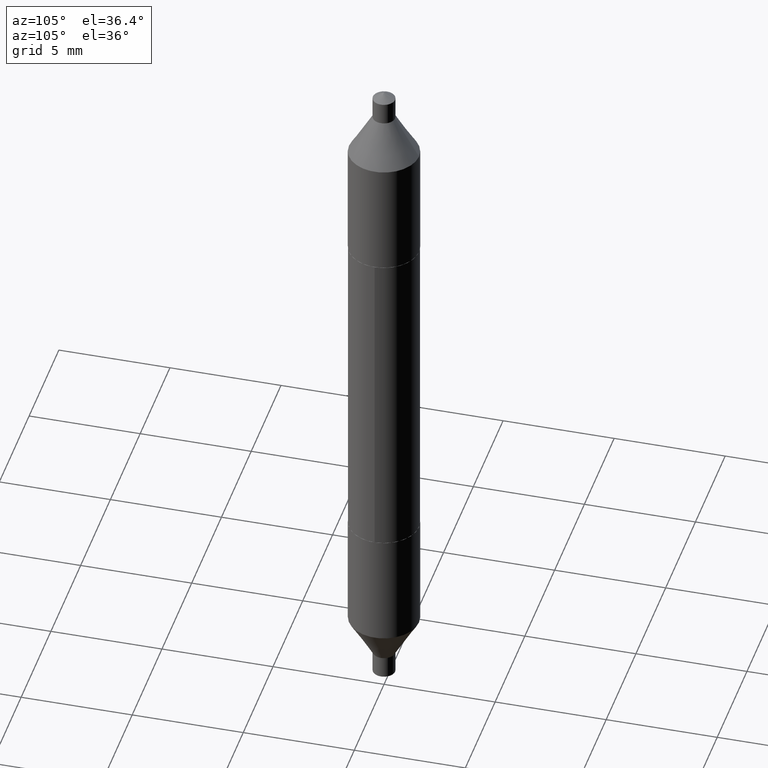
[diagram: clean part render]
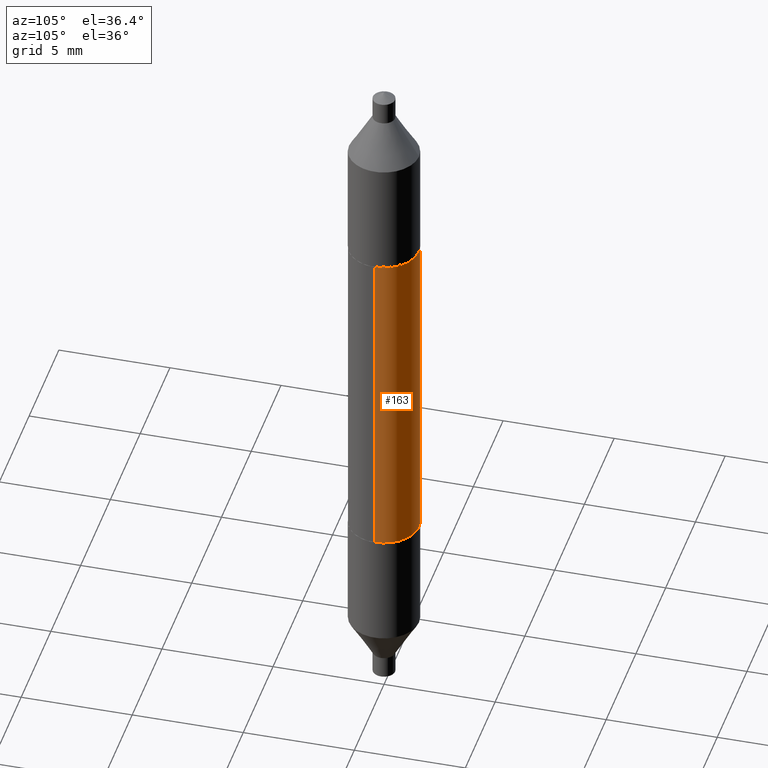
[diagram: same view with one face highlighted and labeled with its STEP entity id]
A machine part, auxiliary view. The second image highlights one B-rep face of the part: STEP entity #163.
In plain terms, the highlighted cylindrical surface (edge-blend (fillet) strip) has radius 1.5748 mm, axis along (-0, 0, 1).
Its self-contained STEP definition (entity closure, byte-faithful):
#25 = CIRCLE ( 'NONE', #530, 0.06200000000000004119 ) ;
#26 = CARTESIAN_POINT ( 'NONE',  ( -0.06200000000000004813, 4.405364961712623586E-16, 0.2924999999999998712 ) ) ;
#38 = CARTESIAN_POINT ( 'NONE',  ( 0.000000000000000000, 0.000000000000000000, 0.000000000000000000 ) ) ;
#40 = EDGE_CURVE ( 'NONE', #492, #41, #54, .T. ) ;
#41 = VERTEX_POINT ( 'NONE', #493 ) ;
#54 = CIRCLE ( 'NONE', #436, 0.06200000000000004119 ) ;
#105 = LINE ( 'NONE', #208, #640 ) ;
#113 = VERTEX_POINT ( 'NONE', #302 ) ;
#140 = LINE ( 'NONE', #677, #662 ) ;
#159 = ORIENTED_EDGE ( 'NONE', *, *, #175, .F. ) ;
#163 = ADVANCED_FACE ( 'NONE', ( #297 ), #510, .T. ) ;
#175 = EDGE_CURVE ( 'NONE', #492, #113, #140, .T. ) ;
#208 = CARTESIAN_POINT ( 'NONE',  ( -0.06200000000000003425, 4.405364961712623586E-16, -3.049739755958042975E-30 ) ) ;
#213 = EDGE_LOOP ( 'NONE', ( #352, #412, #455, #159 ) ) ;
#237 = DIRECTION ( 'NONE',  ( -2.445468806185136597E-29, 3.491481338843145583E-15, 1.000000000000000000 ) ) ;
#241 = AXIS2_PLACEMENT_3D ( 'NONE', #38, #245, #453 ) ;
#245 = DIRECTION ( 'NONE',  ( -2.445468806185136597E-29, 3.491481338843145583E-15, 1.000000000000000000 ) ) ;
#279 = DIRECTION ( 'NONE',  ( 1.000000000000000000, -6.982962677686265922E-15, 0.000000000000000000 ) ) ;
#285 = DIRECTION ( 'NONE',  ( -2.445468806185136597E-29, 3.491481338843145583E-15, 1.000000000000000000 ) ) ;
#291 = EDGE_CURVE ( 'NONE', #41, #431, #105, .T. ) ;
#297 = FACE_OUTER_BOUND ( 'NONE', #213, .T. ) ;
#302 = CARTESIAN_POINT ( 'NONE',  ( 0.06200000000000004119, 5.883146055950708615E-16, 0.2924999999999998712 ) ) ;
#352 = ORIENTED_EDGE ( 'NONE', *, *, #40, .T. ) ;
#382 = CARTESIAN_POINT ( 'NONE',  ( 7.152996258091520958E-30, -1.021258291611619622E-15, -0.2924999999999998712 ) ) ;
#401 = DIRECTION ( 'NONE',  ( -2.445468806185136877E-29, 3.491481338843145188E-15, 1.000000000000000000 ) ) ;
#412 = ORIENTED_EDGE ( 'NONE', *, *, #291, .T. ) ;
#431 = VERTEX_POINT ( 'NONE', #26 ) ;
#436 = AXIS2_PLACEMENT_3D ( 'NONE', #382, #285, #665 ) ;
#452 = EDGE_CURVE ( 'NONE', #113, #431, #25, .T. ) ;
#453 = DIRECTION ( 'NONE',  ( 1.000000000000000000, -6.982962677686266711E-15, 4.876176775795935793E-29 ) ) ;
#455 = ORIENTED_EDGE ( 'NONE', *, *, #452, .F. ) ;
#492 = VERTEX_POINT ( 'NONE', #614 ) ;
#493 = CARTESIAN_POINT ( 'NONE',  ( -0.06200000000000004119, -5.807217954403571159E-16, -0.2924999999999998712 ) ) ;
#510 = CYLINDRICAL_SURFACE ( 'NONE', #241, 0.06200000000000003425 ) ;
#530 = AXIS2_PLACEMENT_3D ( 'NONE', #660, #237, #279 ) ;
#590 = DIRECTION ( 'NONE',  ( -2.445468806185136877E-29, 3.491481338843145188E-15, 1.000000000000000000 ) ) ;
#614 = CARTESIAN_POINT ( 'NONE',  ( 0.06200000000000004119, -1.454201977628168285E-15, -0.2924999999999998712 ) ) ;
#640 = VECTOR ( 'NONE', #590, 39.37007874015748143 ) ;
#660 = CARTESIAN_POINT ( 'NONE',  ( -7.152996258091520958E-30, 1.021258291611619622E-15, 0.2924999999999998712 ) ) ;
#662 = VECTOR ( 'NONE', #401, 39.37007874015748143 ) ;
#665 = DIRECTION ( 'NONE',  ( 1.000000000000000000, -6.982962677686265922E-15, 0.000000000000000000 ) ) ;
#677 = CARTESIAN_POINT ( 'NONE',  ( 0.06200000000000003425, -4.329436860165487609E-16, 3.023229600993481719E-30 ) ) ;